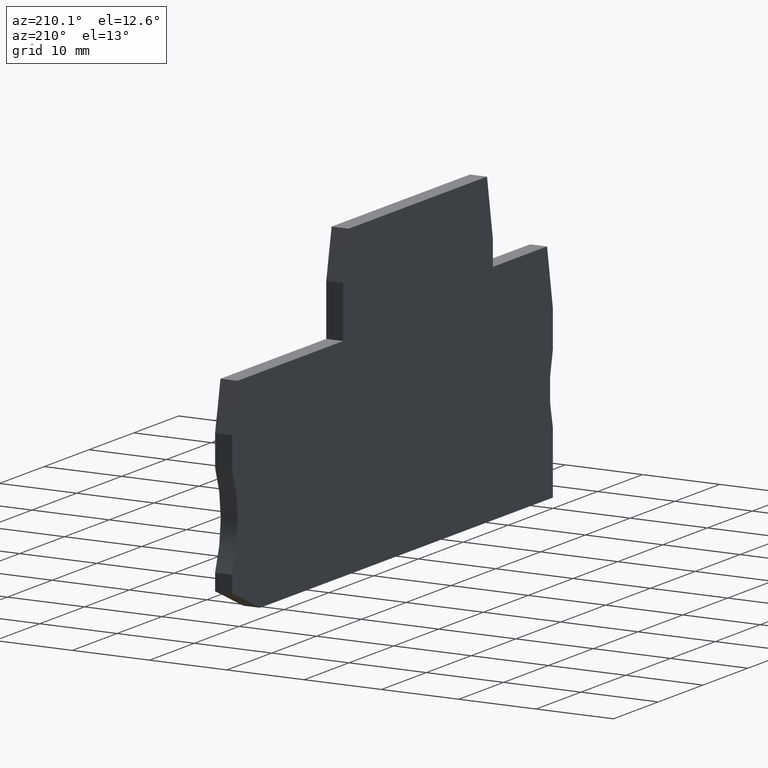
[diagram: clean part render]
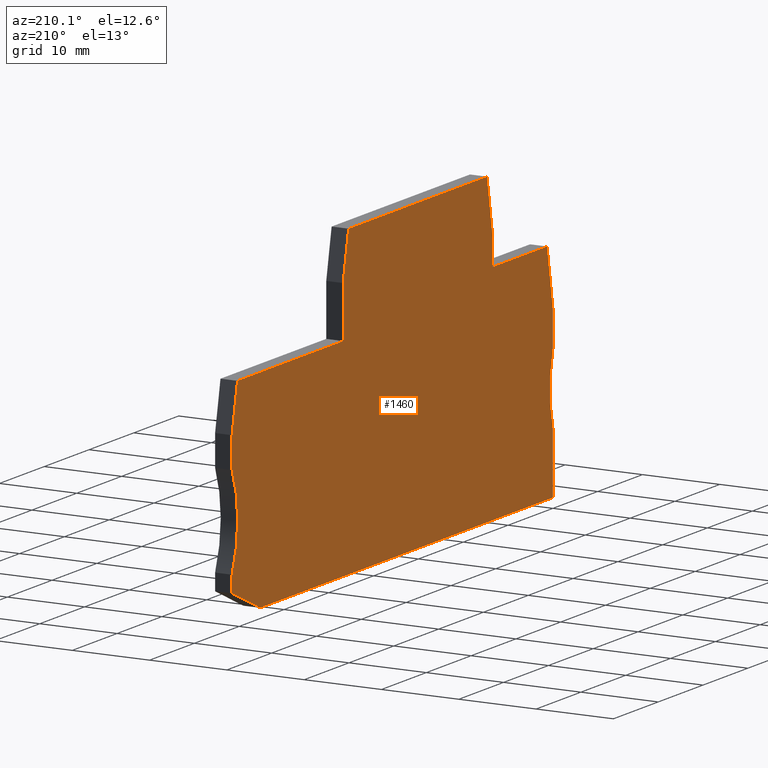
[diagram: same view with one face highlighted and labeled with its STEP entity id]
A machine part, auxiliary view. The second image highlights one B-rep face of the part: STEP entity #1460.
In plain terms, the highlighted planar face has unit normal (-1, 0, -0).
Its self-contained STEP definition (entity closure, byte-faithful):
#10=CARTESIAN_POINT('',(80.5866036945493,0.886529693613305,53.67));
#20=DIRECTION('',(0.,0.,-1.));
#30=DIRECTION('',(-1.,0.,0.));
#40=AXIS2_PLACEMENT_3D('',#10,#20,#30);
#50=PLANE('',#40);
#60=CARTESIAN_POINT('',(96.1109915311721,-11.94298,53.67));
#70=DIRECTION('',(0.196116135138246,-0.980580675690908,0.));
#80=VECTOR('',#70,1.);
#90=LINE('',#60,#80);
#100=CARTESIAN_POINT('',(93.4323955311731,1.44999999999059,53.67));
#110=VERTEX_POINT('',#100);
#120=CARTESIAN_POINT('',(94.6323955311728,-4.55000000000587,53.67));
#130=VERTEX_POINT('',#120);
#140=EDGE_CURVE('',#110,#130,#90,.T.);
#150=ORIENTED_EDGE('',*,*,#140,.T.);
#160=CARTESIAN_POINT('',(104.930098,1.44999999999058,53.67));
#170=DIRECTION('',(1.,0.,0.));
#180=VECTOR('',#170,1.);
#190=LINE('',#160,#180);
#200=CARTESIAN_POINT('',(62.5533991621023,1.44999999999059,53.67));
#210=VERTEX_POINT('',#200);
#220=EDGE_CURVE('',#210,#110,#190,.T.);
#230=ORIENTED_EDGE('',*,*,#220,.T.);
#240=CARTESIAN_POINT('',(60.1918554360151,-11.94298,53.67));
#250=DIRECTION('',(0.17364817766693,0.984807753012208,0.));
#260=VECTOR('',#250,1.);
#270=LINE('',#240,#260);
#280=CARTESIAN_POINT('',(61.2573958538972,-5.89999999999742,53.67));
#290=VERTEX_POINT('',#280);
#300=EDGE_CURVE('',#290,#210,#270,.T.);
#310=ORIENTED_EDGE('',*,*,#300,.T.);
#320=CARTESIAN_POINT('',(61.2573958538972,-11.94298,53.67));
#330=DIRECTION('',(0.,1.,0.));
#340=VECTOR('',#330,1.);
#350=LINE('',#320,#340);
#360=CARTESIAN_POINT('',(61.2573958538972,-9.15000000001019,53.67));
#370=VERTEX_POINT('',#360);
#380=EDGE_CURVE('',#370,#290,#350,.T.);
#390=ORIENTED_EDGE('',*,*,#380,.T.);
#400=CARTESIAN_POINT('',(104.930098,-9.15000000003588,53.67));
#410=DIRECTION('',(1.,-5.88205564955502E-13,0.));
#420=VECTOR('',#410,1.);
#430=LINE('',#400,#420);
#440=CARTESIAN_POINT('',(49.1533988533523,-9.15000000000308,53.67));
#450=VERTEX_POINT('',#440);
#460=EDGE_CURVE('',#450,#370,#430,.T.);
#470=ORIENTED_EDGE('',*,*,#460,.T.);
#480=CARTESIAN_POINT('',(48.6609211227738,-11.94298,53.67));
#490=DIRECTION('',(0.173648177666926,0.984807753012209,0.));
#500=VECTOR('',#490,1.);
#510=LINE('',#480,#500);
#520=CARTESIAN_POINT('',(47.8573958538972,-16.4999982489833,53.67));
#530=VERTEX_POINT('',#520);
#540=EDGE_CURVE('',#530,#450,#510,.T.);
#550=ORIENTED_EDGE('',*,*,#540,.T.);
#560=CARTESIAN_POINT('',(47.8573958538972,-11.94298,53.67));
#570=DIRECTION('',(0.,1.,0.));
#580=VECTOR('',#570,1.);
#590=LINE('',#560,#580);
#600=CARTESIAN_POINT('',(47.8573958538972,-21.2000000000006,53.67));
#610=VERTEX_POINT('',#600);
#620=EDGE_CURVE('',#610,#530,#590,.T.);
#630=ORIENTED_EDGE('',*,*,#620,.T.);
#640=CARTESIAN_POINT('',(33.5483078326437,-25.7000000000027,53.67));
#650=DIRECTION('',(0.,0.,-1.));
#660=DIRECTION('',(-1.,0.,0.));
#670=AXIS2_PLACEMENT_3D('',#640,#650,#660);
#680=CIRCLE('',#670,15.);
#690=CARTESIAN_POINT('',(47.8573958538972,-30.2000000000048,53.67));
#700=VERTEX_POINT('',#690);
#710=EDGE_CURVE('',#610,#700,#680,.T.);
#720=ORIENTED_EDGE('',*,*,#710,.F.);
#730=CARTESIAN_POINT('',(47.8573958538972,-11.94298,53.67));
#740=DIRECTION('',(4.65275954243089E-17,1.,0.));
#750=VECTOR('',#740,1.);
#760=LINE('',#730,#750);
#770=CARTESIAN_POINT('',(47.8573958538972,-38.2000000000016,53.67));
#780=VERTEX_POINT('',#770);
#790=EDGE_CURVE('',#780,#700,#760,.T.);
#800=ORIENTED_EDGE('',*,*,#790,.T.);
#810=CARTESIAN_POINT('',(104.930098,-38.2000000000016,53.67));
#820=DIRECTION('',(-1.,0.,0.));
#830=VECTOR('',#820,1.);
#840=LINE('',#810,#830);
#850=CARTESIAN_POINT('',(113.184773924186,-38.2000000000016,53.67));
#860=VERTEX_POINT('',#850);
#870=EDGE_CURVE('',#860,#780,#840,.T.);
#880=ORIENTED_EDGE('',*,*,#870,.T.);
#890=CARTESIAN_POINT('',(104.930098,-41.97947746349,53.67));
#900=DIRECTION('',(-0.909228114586486,-0.41629825323379,0.));
#910=VECTOR('',#900,1.);
#920=LINE('',#890,#910);
#930=CARTESIAN_POINT('',(119.432395853897,-35.3394702226237,53.67));
#940=VERTEX_POINT('',#930);
#950=EDGE_CURVE('',#940,#860,#920,.T.);
#960=ORIENTED_EDGE('',*,*,#950,.T.);
#970=CARTESIAN_POINT('',(119.432395853897,-11.94298,53.67));
#980=DIRECTION('',(1.79500271114492E-28,-1.,0.));
#990=VECTOR('',#980,1.);
#1000=LINE('',#970,#990);
#1010=CARTESIAN_POINT('',(119.432395853897,-33.2000000320001,53.67));
#1020=VERTEX_POINT('',#1010);
#1030=EDGE_CURVE('',#1020,#940,#1000,.T.);
#1040=ORIENTED_EDGE('',*,*,#1030,.T.);
#1050=CARTESIAN_POINT('',(133.1801229248,-27.2000000000027,53.67));
#1060=DIRECTION('',(0.,0.,1.));
#1070=DIRECTION('',(1.,0.,0.));
#1080=AXIS2_PLACEMENT_3D('',#1050,#1060,#1070);
#1090=CIRCLE('',#1080,15.);
#1100=CARTESIAN_POINT('',(119.432395853897,-21.1999999680051,53.67));
#1110=VERTEX_POINT('',#1100);
#1120=EDGE_CURVE('',#1110,#1020,#1090,.T.);
#1130=ORIENTED_EDGE('',*,*,#1120,.T.);
#1140=CARTESIAN_POINT('',(119.432395853897,-11.94298,53.67));
#1150=DIRECTION('',(1.79500271114492E-28,-1.,0.));
#1160=VECTOR('',#1150,1.);
#1170=LINE('',#1140,#1160);
#1180=CARTESIAN_POINT('',(119.432395853897,-17.1999999999988,53.67));
#1190=VERTEX_POINT('',#1180);
#1200=EDGE_CURVE('',#1190,#1110,#1170,.T.);
#1210=ORIENTED_EDGE('',*,*,#1200,.T.);
#1220=CARTESIAN_POINT('',(118.380991853897,-11.94298,53.67));
#1230=DIRECTION('',(0.196116135138252,-0.980580675690907,0.));
#1240=VECTOR('',#1230,1.);
#1250=LINE('',#1220,#1240);
#1260=CARTESIAN_POINT('',(118.232395853898,-11.2000000000031,53.67));
#1270=VERTEX_POINT('',#1260);
#1280=EDGE_CURVE('',#1270,#1190,#1250,.T.);
#1290=ORIENTED_EDGE('',*,*,#1280,.T.);
#1300=CARTESIAN_POINT('',(104.930098,-11.2000000000031,53.67));
#1310=DIRECTION('',(1.,0.,0.));
#1320=VECTOR('',#1310,1.);
#1330=LINE('',#1300,#1320);
#1340=CARTESIAN_POINT('',(94.6323955311728,-11.2000000000031,53.67));
#1350=VERTEX_POINT('',#1340);
#1360=EDGE_CURVE('',#1350,#1270,#1330,.T.);
#1370=ORIENTED_EDGE('',*,*,#1360,.T.);
#1380=CARTESIAN_POINT('',(94.6323955311728,-11.94298,53.67));
#1390=DIRECTION('',(1.79500271114492E-28,-1.,0.));
#1400=VECTOR('',#1390,1.);
#1410=LINE('',#1380,#1400);
#1420=EDGE_CURVE('',#130,#1350,#1410,.T.);
#1430=ORIENTED_EDGE('',*,*,#1420,.T.);
#1440=EDGE_LOOP('',(#1430,#1370,#1290,#1210,#1130,#1040,#960,#880,#800,
#720,#630,#550,#470,#390,#310,#230,#150));
#1450=FACE_OUTER_BOUND('',#1440,.T.);
#1460=ADVANCED_FACE('',(#1450),#50,.T.);